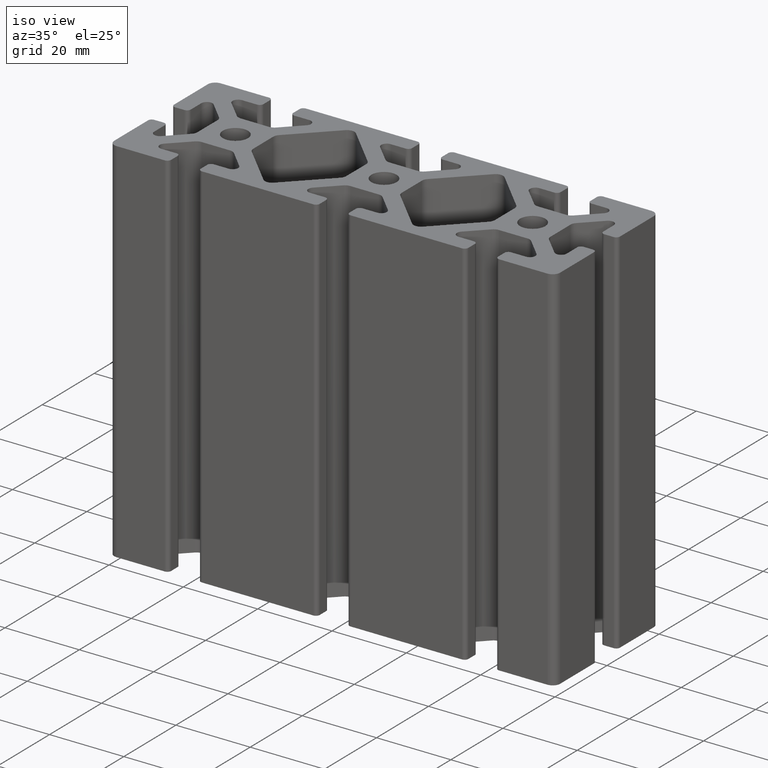
[diagram: clean part render]
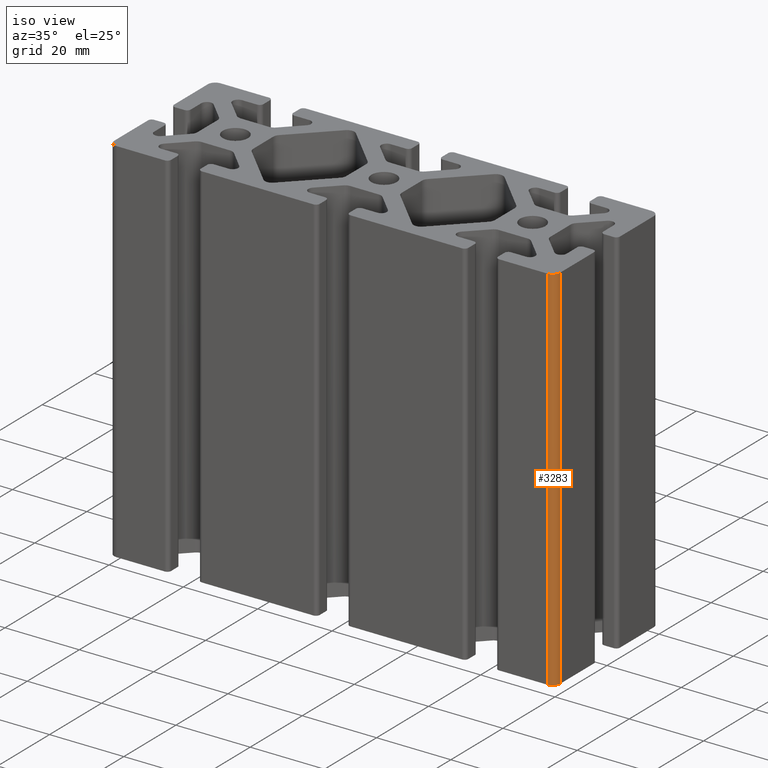
[diagram: same view with one face highlighted and labeled with its STEP entity id]
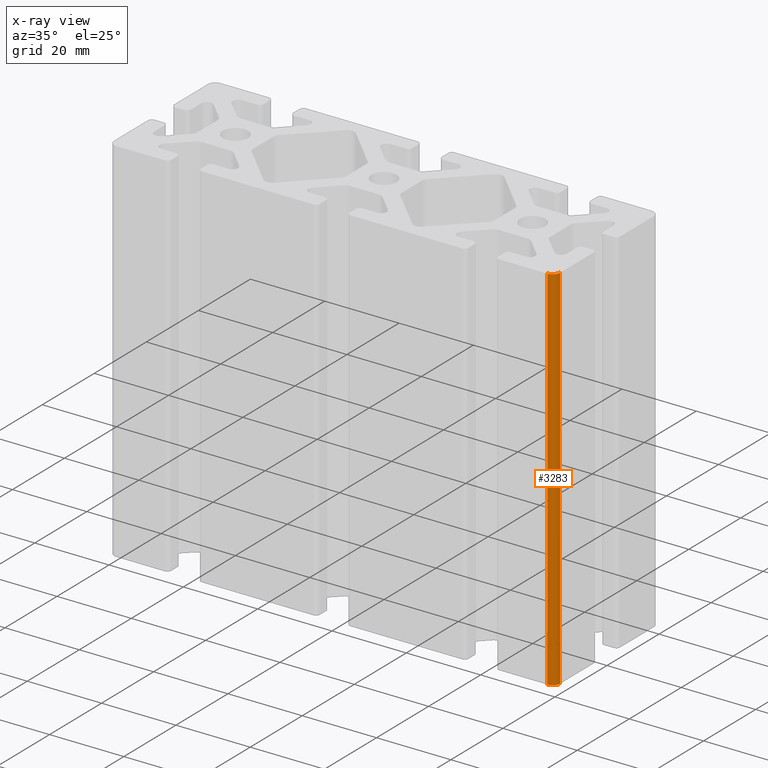
[diagram: x-ray of the same camera — body ghosted, the highlighted face saturated]
A machine part, iso view. The second image highlights one B-rep face of the part: STEP entity #3283.
The next image is the same camera in x-ray: the body ghosted, the highlighted face saturated — about 0% of this face is hidden behind the body in this view.
In plain terms, the highlighted cylindrical surface (edge-blend (fillet) strip) has radius 2 mm, axis along (0, 0, 1).
Its self-contained STEP definition (entity closure, byte-faithful):
#267=FACE_OUTER_BOUND('',#440,.T.);
#440=EDGE_LOOP('',(#2852,#2853,#2854,#2855));
#756=LINE('',#5543,#1076);
#768=LINE('',#5570,#1088);
#1076=VECTOR('',#4551,100.);
#1088=VECTOR('',#4583,100.);
#1253=CIRCLE('',#3610,2.00000000000001);
#1255=CIRCLE('',#3613,2.00000000000001);
#1577=VERTEX_POINT('',#5540);
#1578=VERTEX_POINT('',#5542);
#1582=VERTEX_POINT('',#5562);
#1583=VERTEX_POINT('',#5568);
#2046=EDGE_CURVE('',#1577,#1578,#756,.T.);
#2058=EDGE_CURVE('',#1582,#1578,#1253,.T.);
#2062=EDGE_CURVE('',#1583,#1577,#1255,.T.);
#2063=EDGE_CURVE('',#1583,#1582,#768,.T.);
#2852=ORIENTED_EDGE('',*,*,#2058,.T.);
#2853=ORIENTED_EDGE('',*,*,#2046,.F.);
#2854=ORIENTED_EDGE('',*,*,#2062,.F.);
#2855=ORIENTED_EDGE('',*,*,#2063,.T.);
#3122=CYLINDRICAL_SURFACE('',#3612,2.00000000000001);
#3283=ADVANCED_FACE('',(#267),#3122,.T.);
#3610=AXIS2_PLACEMENT_3D('',#5563,#4573,#4574);
#3612=AXIS2_PLACEMENT_3D('',#5567,#4579,#4580);
#3613=AXIS2_PLACEMENT_3D('',#5569,#4581,#4582);
#4551=DIRECTION('',(0.,0.,1.));
#4573=DIRECTION('center_axis',(0.,0.,-1.));
#4574=DIRECTION('ref_axis',(0.,-1.,0.));
#4579=DIRECTION('center_axis',(0.,0.,1.));
#4580=DIRECTION('ref_axis',(0.,-1.,0.));
#4581=DIRECTION('center_axis',(0.,0.,-1.));
#4582=DIRECTION('ref_axis',(0.,-1.,0.));
#4583=DIRECTION('',(0.,0.,1.));
#5540=CARTESIAN_POINT('',(58.,-20.,0.));
#5542=CARTESIAN_POINT('',(58.,-20.,100.));
#5543=CARTESIAN_POINT('',(58.,-20.,0.));
#5562=CARTESIAN_POINT('',(60.,-18.,100.));
#5563=CARTESIAN_POINT('Origin',(58.,-18.,100.));
#5567=CARTESIAN_POINT('Origin',(58.,-18.,0.));
#5568=CARTESIAN_POINT('',(60.,-18.,0.));
#5569=CARTESIAN_POINT('Origin',(58.,-18.,0.));
#5570=CARTESIAN_POINT('',(60.,-18.,0.));